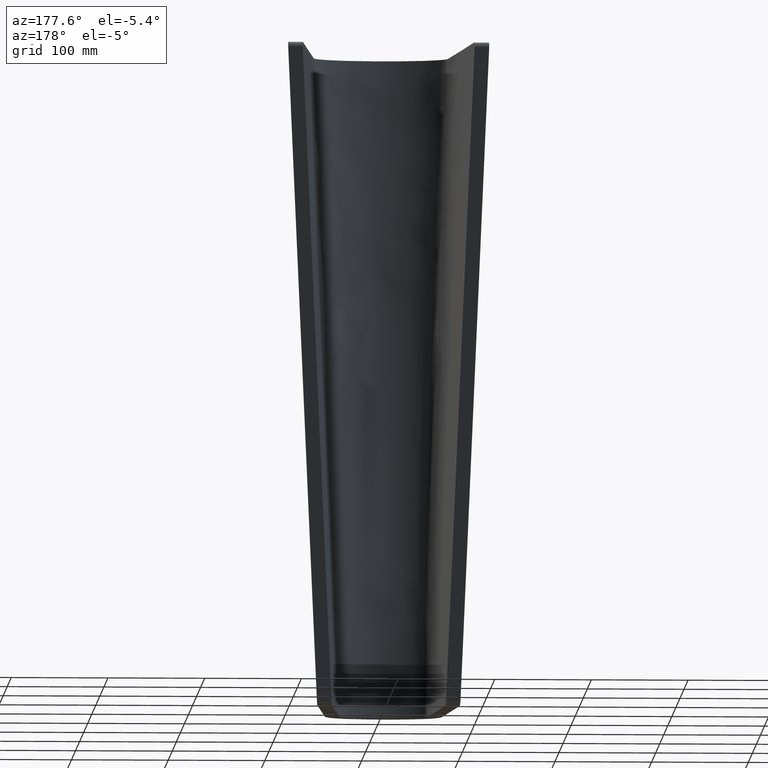
[diagram: clean part render]
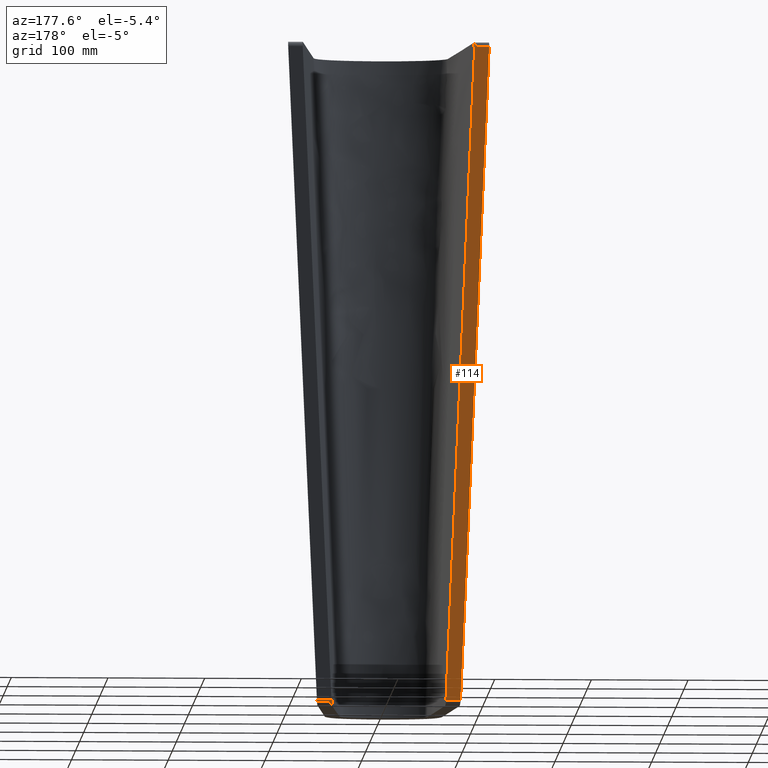
[diagram: same view with one face highlighted and labeled with its STEP entity id]
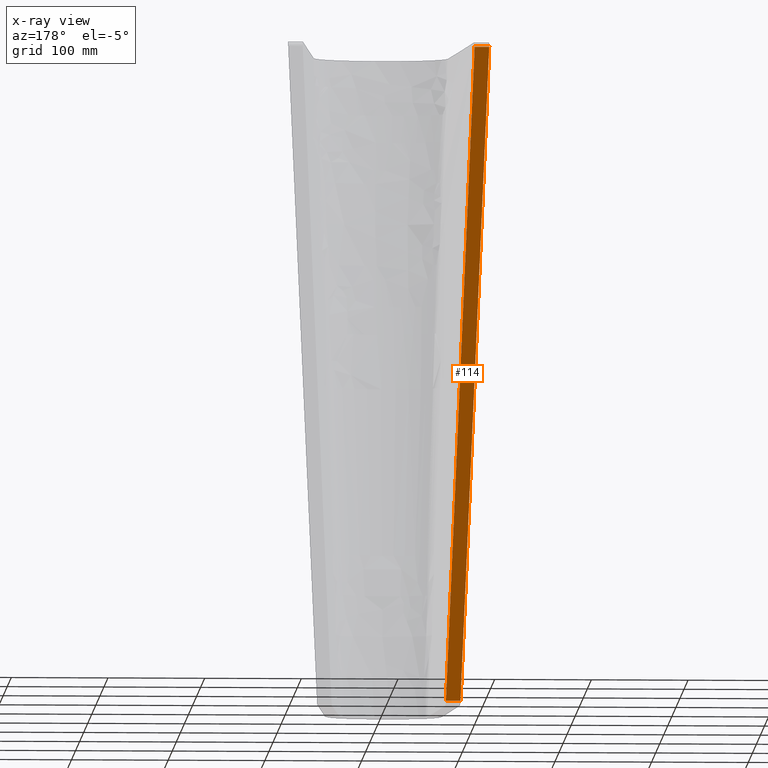
[diagram: x-ray of the same camera — body ghosted, the highlighted face saturated]
A machine part, auxiliary view. The second image highlights one B-rep face of the part: STEP entity #114.
The next image is the same camera in x-ray: the body ghosted, the highlighted face saturated — about 0% of this face is hidden behind the body in this view.
In plain terms, the highlighted planar face has unit normal (0, 1, 0).
Its self-contained STEP definition (entity closure, byte-faithful):
#114=ADVANCED_FACE('',(#128),#122,.T.);
#122=PLANE('',#267);
#128=FACE_OUTER_BOUND('',#138,.T.);
#138=EDGE_LOOP('',(#187,#188,#189,#190));
#149=LINE('',#2434,#157);
#150=LINE('',#2435,#158);
#157=VECTOR('',#286,1.);
#158=VECTOR('',#287,1.);
#187=ORIENTED_EDGE('',*,*,#243,.T.);
#188=ORIENTED_EDGE('',*,*,#245,.F.);
#189=ORIENTED_EDGE('',*,*,#235,.F.);
#190=ORIENTED_EDGE('',*,*,#246,.F.);
#219=VERTEX_POINT('',#515);
#220=VERTEX_POINT('',#516);
#221=VERTEX_POINT('',#1209);
#222=VERTEX_POINT('',#1217);
#235=EDGE_CURVE('',#219,#220,#253,.T.);
#243=EDGE_CURVE('',#222,#221,#261,.T.);
#245=EDGE_CURVE('',#220,#221,#149,.T.);
#246=EDGE_CURVE('',#222,#219,#150,.T.);
#253=B_SPLINE_CURVE_WITH_KNOTS('',3,(#508,#509,#510,#511,#512,#513,#514),
 .UNSPECIFIED.,.F.,.F.,(4,3,4),(0.,0.468789890674854,1.),.UNSPECIFIED.);
#261=B_SPLINE_CURVE_WITH_KNOTS('',3,(#1210,#1211,#1212,#1213,#1214,#1215,
#1216),.UNSPECIFIED.,.F.,.F.,(4,3,4),(0.,0.427379297130392,1.),
 .UNSPECIFIED.);
#267=AXIS2_PLACEMENT_3D('',#2436,#288,#289);
#286=DIRECTION('',(1.,0.,0.));
#287=DIRECTION('',(-1.,0.,0.));
#288=DIRECTION('',(0.,1.,0.));
#289=DIRECTION('',(0.,0.,1.));
#508=CARTESIAN_POINT('',(-511.439663105759,-807.95988118606,496.303189276059));
#509=CARTESIAN_POINT('',(-506.797085508877,-807.95988118606,390.232493220387));
#510=CARTESIAN_POINT('',(-502.154507911693,-807.95988118606,284.161797164729));
#511=CARTESIAN_POINT('',(-497.511930314698,-807.95988118606,178.091101109063));
#512=CARTESIAN_POINT('',(-492.251185145258,-807.95988118606,57.8969007460578));
#513=CARTESIAN_POINT('',(-486.990439976081,-807.95988118606,-62.2972996169589));
#514=CARTESIAN_POINT('',(-481.729694807384,-807.95988118606,-182.491499979997));
#515=CARTESIAN_POINT('',(-511.439663105759,-807.95988118606,496.303189276059));
#516=CARTESIAN_POINT('',(-481.729694807384,-807.95988118606,-182.491499979997));
#1209=CARTESIAN_POINT('',(-466.703563513705,-807.95988118606,-182.491499979997));
#1210=CARTESIAN_POINT('',(-496.413526613523,-807.959881186061,496.30318927606));
#1211=CARTESIAN_POINT('',(-492.181052166326,-807.959881186061,399.602256882194));
#1212=CARTESIAN_POINT('',(-487.948577750565,-807.95988118606,302.901324486953));
#1213=CARTESIAN_POINT('',(-483.716103361562,-807.95988118606,206.200392090541));
#1214=CARTESIAN_POINT('',(-478.045256701975,-807.95988118606,76.6364280689382));
#1215=CARTESIAN_POINT('',(-472.374410090551,-807.95988118606,-52.9275359547725));
#1216=CARTESIAN_POINT('',(-466.703563513705,-807.95988118606,-182.491499979997));
#1217=CARTESIAN_POINT('',(-496.413526613523,-807.959881186061,496.30318927606));
#2434=CARTESIAN_POINT('',(-466.172164061347,-807.95988118606,-182.491499979997));
#2435=CARTESIAN_POINT('',(-466.172164061347,-807.95988118606,496.30318927606));
#2436=CARTESIAN_POINT('',(-466.172164061347,-807.95988118606,-191.636784530941));